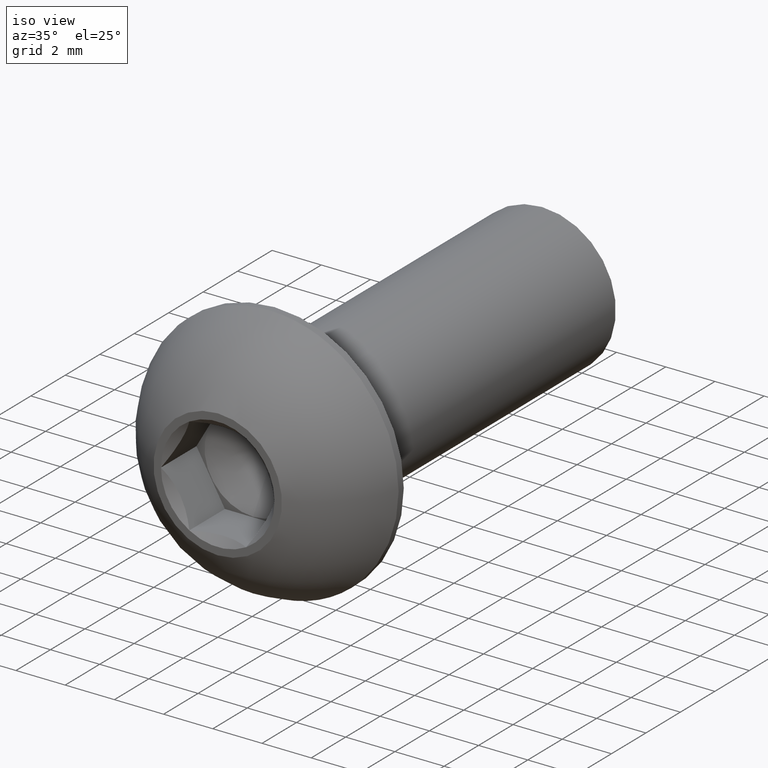
[diagram: clean part render]
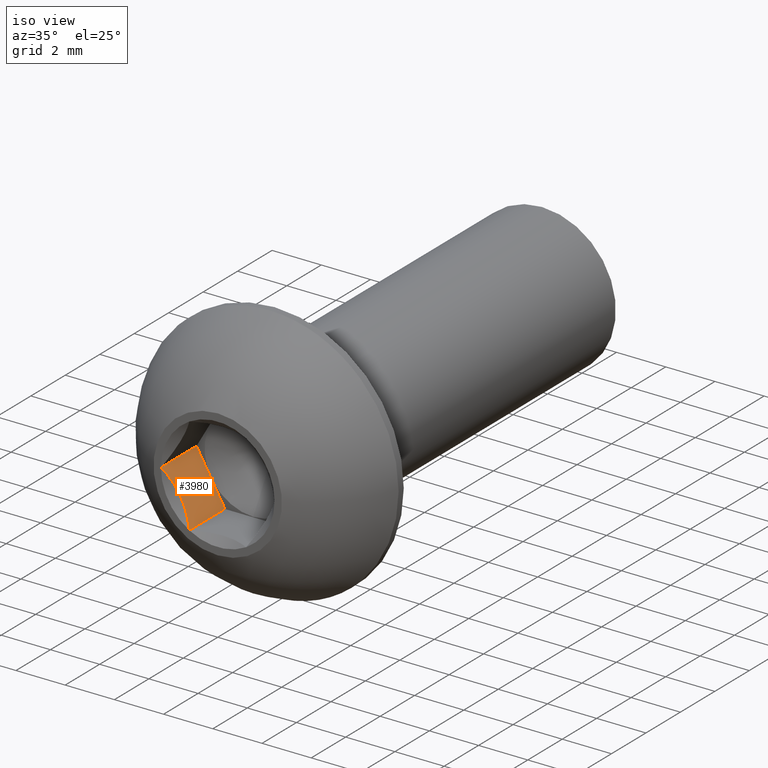
[diagram: same view with one face highlighted and labeled with its STEP entity id]
A machine part, iso view. The second image highlights one B-rep face of the part: STEP entity #3980.
In plain terms, the highlighted planar face has unit normal (0.866, 0, 0.5).
Its self-contained STEP definition (entity closure, byte-faithful):
#783 = VERTEX_POINT ( 'NONE', #4791 ) ;
#843 = CARTESIAN_POINT ( 'NONE',  ( -1.154700538379267900, 2.062499999999999600, -2.000000000000000900 ) ) ;
#1092 = ORIENTED_EDGE ( 'NONE', *, *, #5583, .T. ) ;
#1536 = EDGE_CURVE ( 'NONE', #3145, #10253, #5380, .T. ) ;
#1567 = CARTESIAN_POINT ( 'NONE',  ( -2.219182151635834500, 0.09021892512267061500, -0.1562637621166749800 ) ) ;
#2147 = ORIENTED_EDGE ( 'NONE', *, *, #9770, .F. ) ;
#2632 = AXIS2_PLACEMENT_3D ( 'NONE', #843, #5441, #5252 ) ;
#2661 = CARTESIAN_POINT ( 'NONE',  ( -1.154700538379267900, 0.0000000000000000000, -2.000000000000000900 ) ) ;
#2729 = CARTESIAN_POINT ( 'NONE',  ( -1.245451299245623900, 0.09075076086679061100, -1.842815071353933100 ) ) ;
#2807 = VECTOR ( 'NONE', #3516, 1000.000000000000000 ) ;
#2834 = CARTESIAN_POINT ( 'NONE',  ( -2.126928016055934300, 0.1669275899206240100, -0.3160526121494145500 ) ) ;
#3145 = VERTEX_POINT ( 'NONE', #9224 ) ;
#3257 = ORIENTED_EDGE ( 'NONE', *, *, #12094, .T. ) ;
#3516 = DIRECTION ( 'NONE',  ( 0.0000000000000000000, -1.000000000000000000, 0.0000000000000000000 ) ) ;
#3980 = ADVANCED_FACE ( 'NONE', ( #10996 ), #14119, .T. ) ;
#4791 = CARTESIAN_POINT ( 'NONE',  ( -2.309401076758476300, 2.062499999999999600, 1.326675390987758900E-016 ) ) ;
#5008 = CARTESIAN_POINT ( 'NONE',  ( -1.154700538379267900, 2.062499999999999600, -2.000000000000000900 ) ) ;
#5252 = DIRECTION ( 'NONE',  ( 0.4999999999999857900, 0.0000000000000000000, -0.8660254037844468100 ) ) ;
#5380 = B_SPLINE_CURVE_WITH_KNOTS ( 'NONE', 3,
 ( #8161, #1567, #2834, #11526, #12749, #7157, #9249, #6113, #9304, #11627, #2729, #12655 ),
 .UNSPECIFIED., .F., .F.,
 ( 4, 2, 2, 2, 2, 4 ),
 ( 2.544349856164448600E-007, 0.0005966331004600419300, 0.0008948224331972544100, 0.001193011765934467000, 0.001789390431408891300, 0.002385769096883315900 ),
 .UNSPECIFIED. ) ;
#5401 = LINE ( 'NONE', #6591, #2807 ) ;
#5441 = DIRECTION ( 'NONE',  ( 0.8660254037844469200, 0.0000000000000000000, 0.4999999999999858400 ) ) ;
#5583 = EDGE_CURVE ( 'NONE', #783, #3145, #7061, .T. ) ;
#5958 = CARTESIAN_POINT ( 'NONE',  ( -2.309401076758476300, 2.062499999999999600, 1.326675390987758900E-016 ) ) ;
#6113 = CARTESIAN_POINT ( 'NONE',  ( -1.633374704908100700, 0.3098252479567496500, -1.170912023301345000 ) ) ;
#6591 = CARTESIAN_POINT ( 'NONE',  ( -1.154700538379267900, 2.062499999999999600, -2.000000000000000900 ) ) ;
#7061 = LINE ( 'NONE', #5958, #10138 ) ;
#7157 = CARTESIAN_POINT ( 'NONE',  ( -1.835708118644024500, 0.3010809727708973500, -0.8204602706418588900 ) ) ;
#7351 = DIRECTION ( 'NONE',  ( -0.4999999999999858400, 0.0000000000000000000, 0.8660254037844468100 ) ) ;
#7977 = VECTOR ( 'NONE', #7351, 1000.000000000000000 ) ;
#7991 = CARTESIAN_POINT ( 'NONE',  ( -1.154700538379267900, 2.062499999999999600, -2.000000000000000900 ) ) ;
#8161 = CARTESIAN_POINT ( 'NONE',  ( -2.309401076758476300, 0.0000000000000000000, 1.326675390987758900E-016 ) ) ;
#9224 = CARTESIAN_POINT ( 'NONE',  ( -2.309401076758476300, 0.0000000000000000000, 1.326675390987758900E-016 ) ) ;
#9249 = CARTESIAN_POINT ( 'NONE',  ( -1.784578465267444800, 0.3091822087746202200, -0.9090194280634834600 ) ) ;
#9304 = CARTESIAN_POINT ( 'NONE',  ( -1.534293179749517000, 0.2792985613756160400, -1.342526258967434000 ) ) ;
#9350 = LINE ( 'NONE', #5008, #7977 ) ;
#9770 = EDGE_CURVE ( 'NONE', #11184, #10253, #5401, .T. ) ;
#10138 = VECTOR ( 'NONE', #12337, 1000.000000000000000 ) ;
#10253 = VERTEX_POINT ( 'NONE', #2661 ) ;
#10996 = FACE_OUTER_BOUND ( 'NONE', #12948, .T. ) ;
#11184 = VERTEX_POINT ( 'NONE', #7991 ) ;
#11526 = CARTESIAN_POINT ( 'NONE',  ( -1.983596481850133000, 0.2491289938367600700, -0.5643101117206685800 ) ) ;
#11627 = CARTESIAN_POINT ( 'NONE',  ( -1.338892124838675600, 0.1685650473658723300, -1.680970813925579900 ) ) ;
#12094 = EDGE_CURVE ( 'NONE', #11184, #783, #9350, .T. ) ;
#12337 = DIRECTION ( 'NONE',  ( 0.0000000000000000000, -1.000000000000000000, 0.0000000000000000000 ) ) ;
#12655 = CARTESIAN_POINT ( 'NONE',  ( -1.154700538379267900, 0.0000000000000000000, -2.000000000000000900 ) ) ;
#12749 = CARTESIAN_POINT ( 'NONE',  ( -1.934985545853195000, 0.2709947582013893500, -0.6485067226708465200 ) ) ;
#12948 = EDGE_LOOP ( 'NONE', ( #13578, #2147, #3257, #1092 ) ) ;
#13578 = ORIENTED_EDGE ( 'NONE', *, *, #1536, .T. ) ;
#14119 = PLANE ( 'NONE',  #2632 ) ;